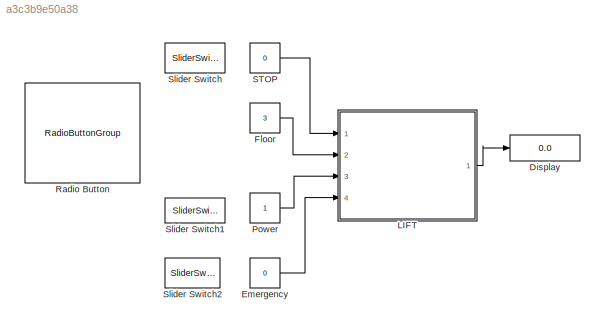
MODEL slx_a3c3b9e50a38
KIND model
CONFIG AbsTol = auto
CONFIG EnableMultiTasking = off
CONFIG FixedStep = auto
CONFIG MaxStep = auto
CONFIG MinStep = auto
CONFIG RelTol = 1e-3
CONFIG SampleTimeConstraint = Unconstrained
CONFIG SolverName = VariableStepAuto
CONFIG StartTime = 0.0
CONFIG StopTime = inf
BLOCK [Display] Display
  Decimation = 1
  Ports = [1]
BLOCK [Constant] Emergency
  Value = 0
BLOCK [Constant] Floor
  Value = 3
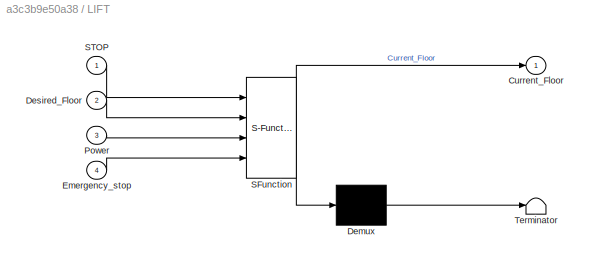
BLOCK [SubSystem] LIFT 
  ErrorFcn = Stateflow.Translate.translate
  PermitHierarchicalResolution = ExplicitOnly
  Ports = [4, 1]
  RequestExecContextInheritance = off
  SFBlockType = Chart
  TreatAsAtomicUnit = on
BLOCK [Demux] LIFT / Demux 
  Outputs = 1
  Ports = [1, 1]
BLOCK [S-Function] LIFT / SFunction 
  EnableBusSupport = on
  FunctionName = sf_sfun
  PortCounts = [4 2]
  Ports = [4, 2]
  SFcnIsStateOwnerBlock = off
  SFunctionDeploymentMode = off
  Tag = Stateflow S-Function 1
BLOCK [Terminator] LIFT / Terminator 
BLOCK [Outport] LIFT /Current_Floor
BLOCK [Inport] LIFT /Desired_Floor
  Port = 2
BLOCK [Inport] LIFT /Emergency_stop
  Port = 4
BLOCK [Inport] LIFT /Power
  Port = 3
BLOCK [Inport] LIFT /STOP
BLOCK [Constant] Power
BLOCK [RadioButtonGroup] Radio Button
  ButtonGroupName = Group
  LabelPosition = Bottom
  SelectedLabel = Third Floor
BLOCK [Constant] STOP
  Value = 0
BLOCK [SliderSwitchBlock] Slider Switch
BLOCK [SliderSwitchBlock] Slider Switch1
BLOCK [SliderSwitchBlock] Slider Switch2
LINE Emergency:1 -> LIFT :4
LINE Floor:1 -> LIFT :2
LINE LIFT :1 -> Display:1
LINE Power:1 -> LIFT :3
LINE STOP:1 -> LIFT :1
CHART LIFT  states=20 transitions=24
  STATE_LABEL 'Lift'
  STATE_LABEL 'Power\n'
  STATE_LABEL 'NORMAL'
  STATE_LABEL 'Loop1'
  STATE_LABEL 'Emer\nen:\n'
  STATE_LABEL 'Loop2'
  STATE_LABEL 'Fan_Light'
  STATE_LABEL 'Fan_Light_Off'
  STATE_LABEL 'Fan_Light_On'
  STATE_LABEL "On{disp 'Fan and Light are On'}"
  STATE_LABEL "Off{disp 'Fan and Light are OFF'}"
  STATE_LABEL 'H'
  STATE_LABEL "Working\nen:\ndisp 'LIFT RUNNING';\n"
  STATE_LABEL "Off\nen:\ndisp 'LIFT STOPPED';\n"
  STATE_LABEL 'On\nen:\n'
  STATE_LABEL "First\nentry:\ni=1;\nCurrent_Floor=1;\ndisp '1 Floor';\n"
  STATE_LABEL "Second\nen:\ni=2;\nCurrent_Floor=2;\ndisp '2 Floor';"
  STATE_LABEL "Third\nen:\ni=3;\nCurrent_Floor=3;\ndisp '3 Floor';"
  STATE_LABEL "Fifth\nen:\ni=5;\nCurrent_Floor=5;\ndisp '5 Floor';"
  STATE_LABEL "Fourth\nen:\ni=4;\nCurrent_Floor=4;\ndisp '4 Floor';"
  STATE_LABEL '[i<Desired_Floor]'
  STATE_LABEL '[i<Desired_Floor]'
  STATE_LABEL '[i<Desired_Floor]'
  STATE_LABEL '[i<Desired_Floor]'
  STATE_LABEL '[i>Desired_Floor]'
  STATE_LABEL '[i>Desired_Floor]'
  STATE_LABEL '[i>Desired_Floor]'
  STATE_LABEL '[i>Desired_Floor]'
  STATE_LABEL 'H'
  STATE_LABEL '[STOP==0]{send(On,Fan_Light)}'
  STATE_LABEL '[STOP==1]{send(Off,Fan_Light)}'
  STATE_LABEL 'H'
  STATE_LABEL '[Emergency_stop==0]{send(No_emg,Emergency)}'
  STATE_LABEL '[Emergency_stop==1]{send(Emg,Emergency)}'
  STATE_LABEL 'H'
  STATE_LABEL 'Emergency'
  STATE_LABEL 'Emg_off\nen:'
  STATE_LABEL "Emg_On\nen:\ndisp 'EMERGENCY STOP AND ALARM ARE ON';"
  STATE_LABEL 'Emg'
  STATE_LABEL "No_emg{disp 'EMERGENCY STOP AND ALARM ARE OFF'}"
CHART  states=0 transitions=0
